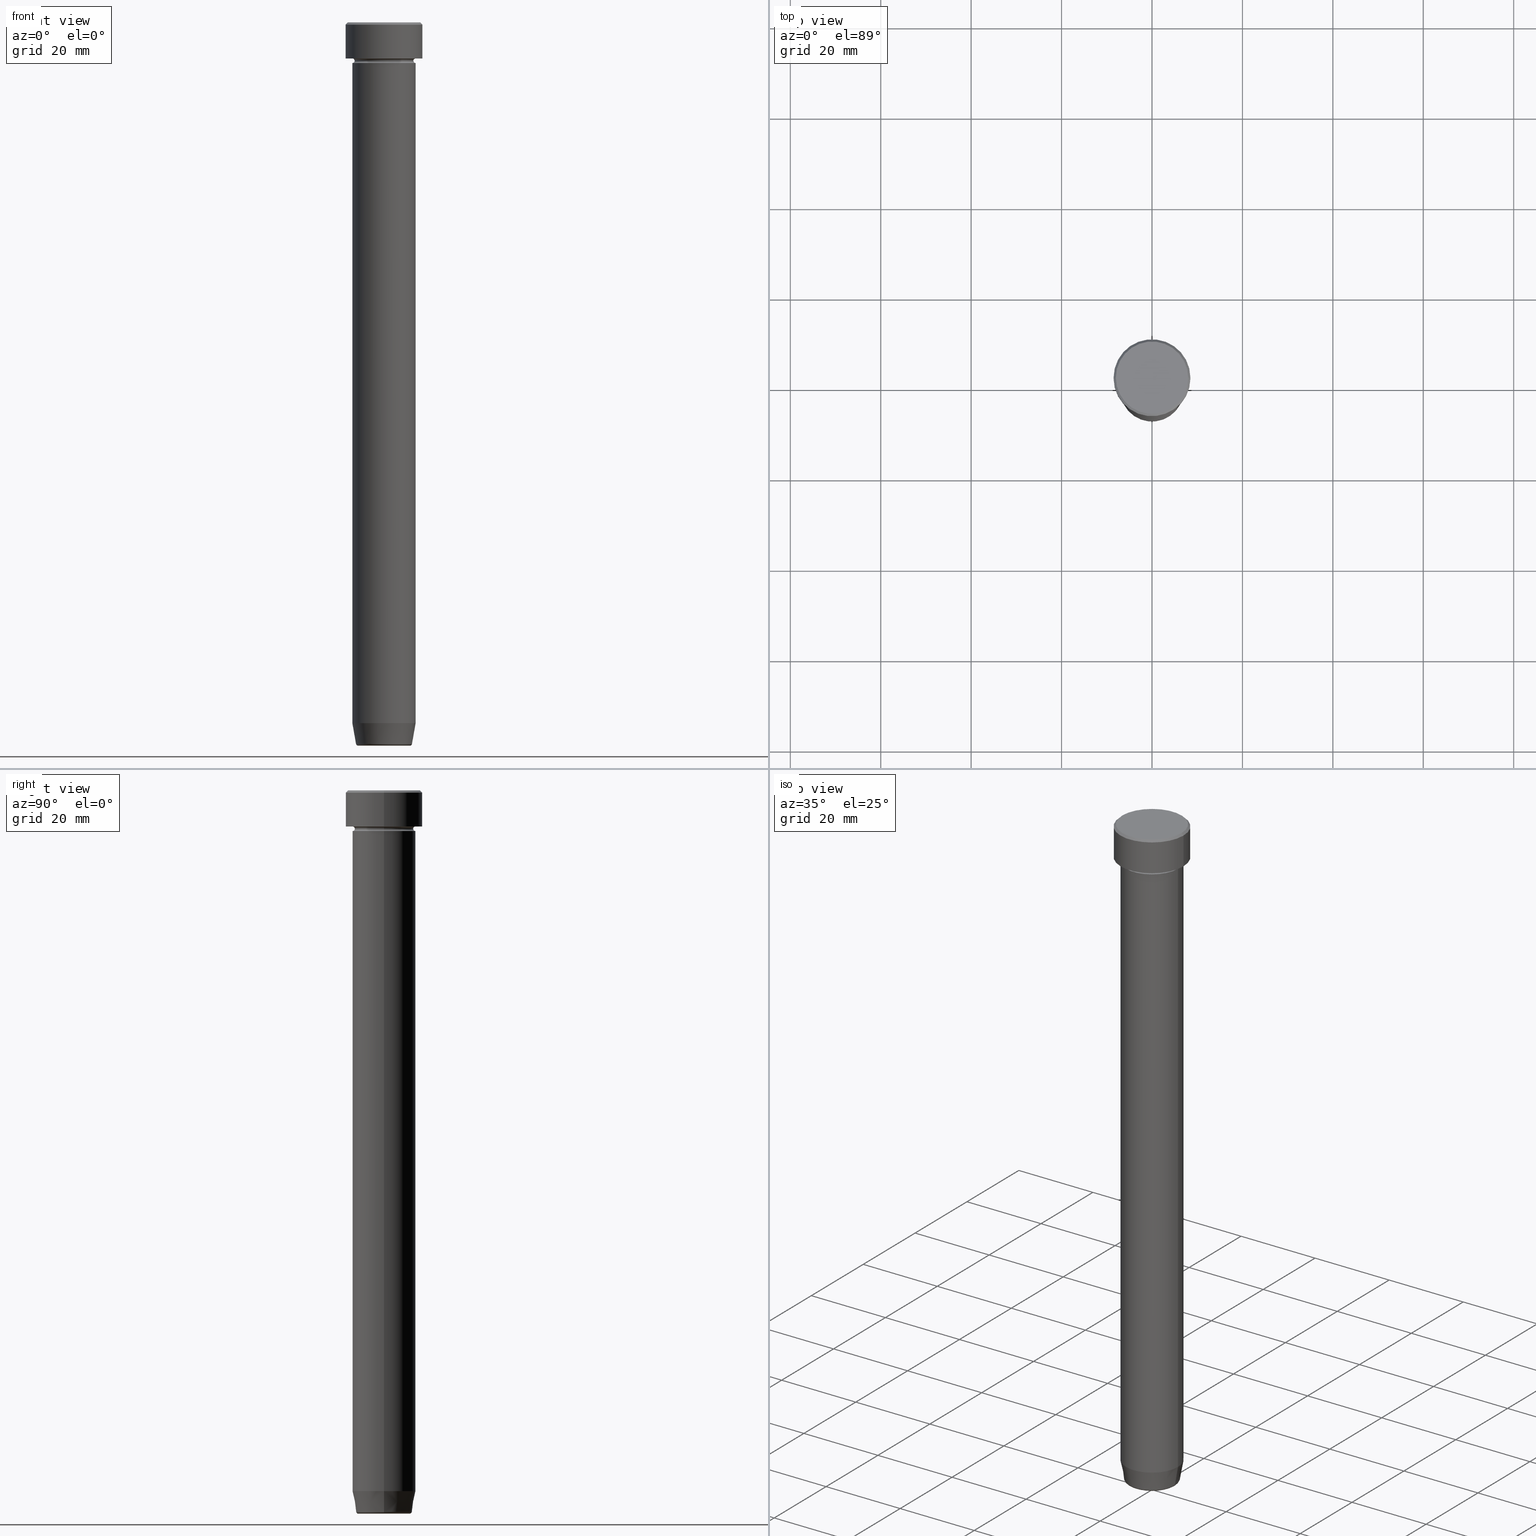
[diagram: canonical four-view strip — front | top / right | iso, engineering-drawing reading convention]
A machine part, canonical four-view strip (front | top / right | iso — engineering-drawing reading convention). The complete STEP part file that produces these views, byte-faithful:
ISO-10303-21;
HEADER;
FILE_DESCRIPTION (( 'STEP AP203' ),
    '1' );
FILE_NAME ('0b89.STEP',
    '2024-01-02T23:19:07',
    ( '' ),
    ( '' ),
    'SwSTEP 2.0',
    'SolidWorks 2019',
    '' );
FILE_SCHEMA (( 'CONFIG_CONTROL_DESIGN' ));
ENDSEC;

DATA;
#1 = EDGE_CURVE ( 'NONE', #176, #409, #276, .T. ) ;
#2 = CARTESIAN_POINT ( 'NONE',  ( 0.000000000000000000, 0.000000000000000000, -8.000000000000000000 ) ) ;
#3 = VECTOR ( 'NONE', #314, 1000.000000000000000 ) ;
#4 = APPROVAL_PERSON_ORGANIZATION ( #391, #126, #346 ) ;
#5 = CARTESIAN_POINT ( 'NONE',  ( -6.999999999999999112, 8.572527594031472204E-16, -22.00000000000000000 ) ) ;
#6 = DIRECTION ( 'NONE',  ( 0.1736481776669292765, 0.000000000000000000, 0.9848077530122082424 ) ) ;
#7 = ORIENTED_EDGE ( 'NONE', *, *, #411, .T. ) ;
#8 = DATE_AND_TIME ( #381, #588 ) ;
#9 = DIRECTION ( 'NONE',  ( -1.000000000000000000, 0.000000000000000000, 0.000000000000000000 ) ) ;
#10 = CARTESIAN_POINT ( 'NONE',  ( 6.118365096457679009, 0.000000000000000000, -160.0000000000000000 ) ) ;
#11 = CALENDAR_DATE ( 2024, 3, 1 ) ;
#12 = DIRECTION ( 'NONE',  ( -0.000000000000000000, -0.000000000000000000, 1.000000000000000000 ) ) ;
#13 = CARTESIAN_POINT ( 'NONE',  ( 0.000000000000000000, 1.347111479062088839E-14, -160.0000000000000000 ) ) ;
#14 = EDGE_CURVE ( 'NONE', #409, #176, #580, .T. ) ;
#15 = ORIENTED_EDGE ( 'NONE', *, *, #403, .F. ) ;
#16 = VECTOR ( 'NONE', #591, 1000.000000000000000 ) ;
#17 = DIRECTION ( 'NONE',  ( 1.000000000000000000, 0.000000000000000000, 0.000000000000000000 ) ) ;
#18 = ORIENTED_EDGE ( 'NONE', *, *, #445, .F. ) ;
#19 = CC_DESIGN_PERSON_AND_ORGANIZATION_ASSIGNMENT ( #579, #331, ( #232 ) ) ;
#20 = DIRECTION ( 'NONE',  ( 1.000000000000000000, 0.000000000000000000, 0.000000000000000000 ) ) ;
#21 = DIRECTION ( 'NONE',  ( 0.000000000000000000, -0.000000000000000000, 1.000000000000000000 ) ) ;
#22 = EDGE_LOOP ( 'NONE', ( #405, #302, #308, #495 ) ) ;
#23 = EDGE_CURVE ( 'NONE', #29, #237, #493, .T. ) ;
#24 = ORIENTED_EDGE ( 'NONE', *, *, #537, .T. ) ;
#25 = AXIS2_PLACEMENT_3D ( 'NONE', #157, #109, #392 ) ;
#26 = CARTESIAN_POINT ( 'NONE',  ( 0.000000000000000000, 0.000000000000000000, 0.000000000000000000 ) ) ;
#27 = AXIS2_PLACEMENT_3D ( 'NONE', #506, #555, #456 ) ;
#28 = DIRECTION ( 'NONE',  ( 1.000000000000000000, 0.000000000000000000, 0.000000000000000000 ) ) ;
#29 = VERTEX_POINT ( 'NONE', #37 ) ;
#30 = VERTEX_POINT ( 'NONE', #418 ) ;
#31 = FACE_OUTER_BOUND ( 'NONE', #435, .T. ) ;
#32 = ORIENTED_EDGE ( 'NONE', *, *, #139, .T. ) ;
#33 = EDGE_CURVE ( 'NONE', #397, #450, #442, .T. ) ;
#34 = TOROIDAL_SURFACE ( 'NONE', #449, 5.698815280869040656, 0.5000000000000000000 ) ;
#35 = LOCAL_TIME ( 0, 19, 7.000000000000000000, #159 ) ;
#36 = EDGE_LOOP ( 'NONE', ( #524, #150, #487, #105 ) ) ;
#37 = CARTESIAN_POINT ( 'NONE',  ( -7.000000000000000888, 0.000000000000000000, -8.000000000000000000 ) ) ;
#38 = EDGE_CURVE ( 'NONE', #538, #385, #267, .T. ) ;
#39 = DIRECTION ( 'NONE',  ( 1.000000000000000000, 0.000000000000000000, 0.000000000000000000 ) ) ;
#40 = CARTESIAN_POINT ( 'NONE',  ( -6.999999999999999112, 8.572527594031472204E-16, 0.000000000000000000 ) ) ;
#41 = CIRCLE ( 'NONE', #433, 6.999999999999999112 ) ;
#42 = DIRECTION ( 'NONE',  ( -0.000000000000000000, -0.000000000000000000, 1.000000000000000000 ) ) ;
#43 = AXIS2_PLACEMENT_3D ( 'NONE', #2, #221, #187 ) ;
#44 = AXIS2_PLACEMENT_3D ( 'NONE', #89, #42, #369 ) ;
#45 = DIRECTION ( 'NONE',  ( 1.000000000000000000, 0.000000000000000000, 0.000000000000000000 ) ) ;
#46 = DIRECTION ( 'NONE',  ( 0.000000000000000000, 0.000000000000000000, -1.000000000000000000 ) ) ;
#47 = EDGE_CURVE ( 'NONE', #116, #402, #597, .T. ) ;
#48 = LINE ( 'NONE', #550, #3 ) ;
#49 = DIRECTION ( 'NONE',  ( 1.000000000000000000, 0.000000000000000000, 0.000000000000000000 ) ) ;
#50 = LINE ( 'NONE', #378, #83 ) ;
#51 = CIRCLE ( 'NONE', #131, 7.000000000000000888 ) ;
#52 = VERTEX_POINT ( 'NONE', #94 ) ;
#53 = SECURITY_CLASSIFICATION ( '', '', #335 ) ;
#54 = APPROVAL_DATE_TIME ( #531, #590 ) ;
#55 = CIRCLE ( 'NONE', #398, 5.698815280869040656 ) ;
#56 = PLANE ( 'NONE',  #170 ) ;
#57 = ORIENTED_EDGE ( 'NONE', *, *, #217, .T. ) ;
#58 = DATE_TIME_ROLE ( 'classification_date' ) ;
#59 = EDGE_CURVE ( 'NONE', #584, #202, #135, .T. ) ;
#60 = CARTESIAN_POINT ( 'NONE',  ( 6.500000000000000888, 0.000000000000000000, -8.500000000000000000 ) ) ;
#61 = EDGE_LOOP ( 'NONE', ( #352, #334 ) ) ;
#62 = DIRECTION ( 'NONE',  ( -0.000000000000000000, -0.000000000000000000, 1.000000000000000000 ) ) ;
#63 = EDGE_LOOP ( 'NONE', ( #173, #339 ) ) ;
#64 = AXIS2_PLACEMENT_3D ( 'NONE', #523, #62, #434 ) ;
#65 = COORDINATED_UNIVERSAL_TIME_OFFSET ( 1, 0, .AHEAD. ) ;
#66 = AXIS2_PLACEMENT_3D ( 'NONE', #255, #439, #585 ) ;
#67 = CARTESIAN_POINT ( 'NONE',  ( 0.000000000000000000, 0.000000000000000000, -8.500000000000000000 ) ) ;
#68 = ORIENTED_EDGE ( 'NONE', *, *, #14, .T. ) ;
#69 = EDGE_CURVE ( 'NONE', #249, #402, #233, .T. ) ;
#70 =( NAMED_UNIT ( * ) SI_UNIT ( $, .STERADIAN. ) SOLID_ANGLE_UNIT ( ) );
#71 = EDGE_LOOP ( 'NONE', ( #18, #119, #155, #543 ) ) ;
#72 = MECHANICAL_CONTEXT ( 'NONE', #75, 'mechanical' ) ;
#73 = DIRECTION ( 'NONE',  ( 1.000000000000000000, 0.000000000000000000, 0.000000000000000000 ) ) ;
#74 = EDGE_LOOP ( 'NONE', ( #475, #446 ) ) ;
#75 = APPLICATION_CONTEXT ( 'configuration controlled 3d designs of mechanical parts and assemblies' ) ;
#76 = AXIS2_PLACEMENT_3D ( 'NONE', #97, #200, #564 ) ;
#77 = CARTESIAN_POINT ( 'NONE',  ( 5.698815280869040656, 0.000000000000000000, -159.5000000000000000 ) ) ;
#78 = ORIENTED_EDGE ( 'NONE', *, *, #139, .F. ) ;
#79 = DIRECTION ( 'NONE',  ( 1.000000000000000000, 0.000000000000000000, 0.000000000000000000 ) ) ;
#80 = ADVANCED_FACE ( 'NONE', ( #273 ), #319, .T. ) ;
#81 = ORIENTED_EDGE ( 'NONE', *, *, #1, .T. ) ;
#82 = EDGE_LOOP ( 'NONE', ( #536, #81, #530, #360 ) ) ;
#83 = VECTOR ( 'NONE', #191, 1000.000000000000000 ) ;
#84 = DIRECTION ( 'NONE',  ( -1.000000000000000000, 0.000000000000000000, 0.000000000000000000 ) ) ;
#85 = CIRCLE ( 'NONE', #25, 0.5000000000000004441 ) ;
#86 = ADVANCED_FACE ( 'NONE', ( #180 ), #223, .F. ) ;
#87 = DIRECTION ( 'NONE',  ( -0.000000000000000000, -0.000000000000000000, 1.000000000000000000 ) ) ;
#88 = CARTESIAN_POINT ( 'NONE',  ( 0.000000000000000000, 0.000000000000000000, -8.000000000000000000 ) ) ;
#89 = CARTESIAN_POINT ( 'NONE',  ( 0.000000000000000000, 0.000000000000000000, -8.000000000000000000 ) ) ;
#90 = DIRECTION ( 'NONE',  ( -0.000000000000000000, -0.000000000000000000, 1.000000000000000000 ) ) ;
#91 = FACE_OUTER_BOUND ( 'NONE', #482, .T. ) ;
#92 = CONICAL_SURFACE ( 'NONE', #27, 8.000000000000000000, 0.7853981633974500554 ) ;
#93 = CARTESIAN_POINT ( 'NONE',  ( -8.500000000000000000, 1.040949779275250140E-15, -8.000000000000000000 ) ) ;
#94 = CARTESIAN_POINT ( 'NONE',  ( 8.000000000000000000, 1.010333609296566550E-15, 0.000000000000000000 ) ) ;
#95 = CYLINDRICAL_SURFACE ( 'NONE', #395, 8.500000000000000000 ) ;
#96 = FACE_OUTER_BOUND ( 'NONE', #22, .T. ) ;
#97 = CARTESIAN_POINT ( 'NONE',  ( 7.000000000000000888, 8.572527594031474176E-16, -8.500000000000000000 ) ) ;
#98 = CARTESIAN_POINT ( 'NONE',  ( -8.500000000000000000, 1.040949779275250140E-15, -0.4999999999999987232 ) ) ;
#99 = CIRCLE ( 'NONE', #112, 0.5000000000000004441 ) ;
#100 = ORIENTED_EDGE ( 'NONE', *, *, #461, .T. ) ;
#101 = CC_DESIGN_SECURITY_CLASSIFICATION ( #53, ( #415 ) ) ;
#102 = PERSON_AND_ORGANIZATION ( #269, #163 ) ;
#103 = EDGE_CURVE ( 'NONE', #393, #496, #55, .T. ) ;
#104 = DIRECTION ( 'NONE',  ( 1.000000000000000000, 0.000000000000000000, 0.000000000000000000 ) ) ;
#105 = ORIENTED_EDGE ( 'NONE', *, *, #363, .F. ) ;
#106 = CYLINDRICAL_SURFACE ( 'NONE', #64, 6.999999999999999112 ) ;
#107 = COORDINATED_UNIVERSAL_TIME_OFFSET ( 1, 0, .AHEAD. ) ;
#108 = DIRECTION ( 'NONE',  ( -1.000000000000000000, 1.224646799147351482E-16, 0.000000000000000000 ) ) ;
#109 = DIRECTION ( 'NONE',  ( 0.000000000000000000, -1.000000000000000000, 0.000000000000000000 ) ) ;
#110 = ADVANCED_FACE ( 'NONE', ( #138 ), #92, .T. ) ;
#111 = ORIENTED_EDGE ( 'NONE', *, *, #340, .F. ) ;
#112 = AXIS2_PLACEMENT_3D ( 'NONE', #77, #578, #353 ) ;
#113 = PERSON_AND_ORGANIZATION ( #269, #163 ) ;
#114 = LOCAL_TIME ( 0, 19, 7.000000000000000000, #107 ) ;
#115 = APPROVAL_STATUS ( 'not_yet_approved' ) ;
#116 = VERTEX_POINT ( 'NONE', #325 ) ;
#117 =( LENGTH_UNIT ( ) NAMED_UNIT ( * ) SI_UNIT ( .MILLI., .METRE. ) );
#118 = ORIENTED_EDGE ( 'NONE', *, *, #542, .T. ) ;
#119 = ORIENTED_EDGE ( 'NONE', *, *, #146, .F. ) ;
#120 = AXIS2_PLACEMENT_3D ( 'NONE', #239, #144, #108 ) ;
#121 = CC_DESIGN_APPROVAL ( #407, ( #415 ) ) ;
#122 = ADVANCED_FACE ( 'NONE', ( #599 ), #559, .T. ) ;
#123 = TOROIDAL_SURFACE ( 'NONE', #458, 7.000000000000000888, 0.5000000000000000000 ) ;
#124 = DIRECTION ( 'NONE',  ( -0.000000000000000000, -0.000000000000000000, 1.000000000000000000 ) ) ;
#125 = EDGE_LOOP ( 'NONE', ( #78, #380, #118, #15 ) ) ;
#126 = APPROVAL ( #115, 'NEUR�EN�' ) ;
#127 = ORIENTED_EDGE ( 'NONE', *, *, #14, .F. ) ;
#128 = CARTESIAN_POINT ( 'NONE',  ( 0.000000000000000000, 0.000000000000000000, -22.00000000000000000 ) ) ;
#129 = ORIENTED_EDGE ( 'NONE', *, *, #552, .F. ) ;
#130 = ADVANCED_FACE ( 'NONE', ( #91 ), #208, .T. ) ;
#131 = AXIS2_PLACEMENT_3D ( 'NONE', #561, #195, #9 ) ;
#132 = CARTESIAN_POINT ( 'NONE',  ( 5.698815280869040656, 0.000000000000000000, -160.0000000000000000 ) ) ;
#133 =( GEOMETRIC_REPRESENTATION_CONTEXT ( 3 ) GLOBAL_UNCERTAINTY_ASSIGNED_CONTEXT ( ( #185 ) ) GLOBAL_UNIT_ASSIGNED_CONTEXT ( ( #117, #583, #70 ) ) REPRESENTATION_CONTEXT ( 'NONE', 'WORKASPACE' ) );
#134 = AXIS2_PLACEMENT_3D ( 'NONE', #137, #279, #49 ) ;
#135 = LINE ( 'NONE', #329, #164 ) ;
#136 = DIRECTION ( 'NONE',  ( 1.000000000000000000, 0.000000000000000000, 0.000000000000000000 ) ) ;
#137 = CARTESIAN_POINT ( 'NONE',  ( 0.000000000000000000, 0.000000000000000000, 0.000000000000000000 ) ) ;
#138 = FACE_OUTER_BOUND ( 'NONE', #71, .T. ) ;
#139 = EDGE_CURVE ( 'NONE', #402, #264, #231, .T. ) ;
#140 = CARTESIAN_POINT ( 'NONE',  ( 0.000000000000000000, 0.000000000000000000, -160.0000000000000000 ) ) ;
#141 = CIRCLE ( 'NONE', #520, 6.999999999999999112 ) ;
#142 = DIRECTION ( 'NONE',  ( -0.000000000000000000, -0.000000000000000000, 1.000000000000000000 ) ) ;
#143 = AXIS2_PLACEMENT_3D ( 'NONE', #270, #460, #454 ) ;
#144 = DIRECTION ( 'NONE',  ( 1.224646799147353207E-16, 1.000000000000000000, 0.000000000000000000 ) ) ;
#145 = PERSON_AND_ORGANIZATION_ROLE ( 'design_supplier' ) ;
#146 = EDGE_CURVE ( 'NONE', #423, #52, #406, .T. ) ;
#147 = EDGE_LOOP ( 'NONE', ( #165, #262, #377, #527 ) ) ;
#148 = DATE_AND_TIME ( #283, #114 ) ;
#149 = FACE_OUTER_BOUND ( 'NONE', #212, .T. ) ;
#150 = ORIENTED_EDGE ( 'NONE', *, *, #320, .T. ) ;
#151 = PERSON_AND_ORGANIZATION ( #269, #163 ) ;
#152 = CLOSED_SHELL ( 'NONE', ( #528, #190, #183, #86, #586, #256, #280, #488 ) ) ;
#153 = FACE_OUTER_BOUND ( 'NONE', #125, .T. ) ;
#154 = FACE_OUTER_BOUND ( 'NONE', #592, .T. ) ;
#155 = ORIENTED_EDGE ( 'NONE', *, *, #303, .T. ) ;
#156 = EDGE_CURVE ( 'NONE', #450, #397, #287, .T. ) ;
#157 = CARTESIAN_POINT ( 'NONE',  ( 7.000000000000000888, 0.000000000000000000, -8.500000000000000000 ) ) ;
#158 = ORIENTED_EDGE ( 'NONE', *, *, #558, .T. ) ;
#159 = COORDINATED_UNIVERSAL_TIME_OFFSET ( 1, 0, .AHEAD. ) ;
#160 = DIRECTION ( 'NONE',  ( -0.000000000000000000, -0.000000000000000000, 1.000000000000000000 ) ) ;
#161 = EDGE_LOOP ( 'NONE', ( #589, #158, #252, #111 ) ) ;
#162 = AXIS2_PLACEMENT_3D ( 'NONE', #459, #90, #136 ) ;
#163 = ORGANIZATION ( 'NEUR�EN�', 'NEUR�EN�', '' ) ;
#164 = VECTOR ( 'NONE', #228, 1000.000000000000000 ) ;
#165 = ORIENTED_EDGE ( 'NONE', *, *, #33, .T. ) ;
#166 = CARTESIAN_POINT ( 'NONE',  ( 0.000000000000000000, 0.000000000000000000, -9.000000000000001776 ) ) ;
#167 = ORIENTED_EDGE ( 'NONE', *, *, #507, .F. ) ;
#168 = ADVANCED_FACE ( 'NONE', ( #374 ), #123, .F. ) ;
#169 = CARTESIAN_POINT ( 'NONE',  ( 0.000000000000000000, 0.000000000000000000, -8.500000000000000000 ) ) ;
#170 = AXIS2_PLACEMENT_3D ( 'NONE', #193, #290, #465 ) ;
#171 = LOCAL_TIME ( 0, 19, 7.000000000000000000, #65 ) ;
#172 = DIRECTION ( 'NONE',  ( 1.000000000000000000, 0.000000000000000000, 0.000000000000000000 ) ) ;
#173 = ORIENTED_EDGE ( 'NONE', *, *, #370, .T. ) ;
#174 = EDGE_CURVE ( 'NONE', #30, #116, #413, .T. ) ;
#175 = DIRECTION ( 'NONE',  ( 1.224646799147353207E-16, 1.000000000000000000, 0.000000000000000000 ) ) ;
#176 = VERTEX_POINT ( 'NONE', #60 ) ;
#177 = DIRECTION ( 'NONE',  ( 0.000000000000000000, 0.000000000000000000, -1.000000000000000000 ) ) ;
#178 = AXIS2_PLACEMENT_3D ( 'NONE', #26, #350, #443 ) ;
#179 = DIRECTION ( 'NONE',  ( -0.000000000000000000, -0.000000000000000000, 1.000000000000000000 ) ) ;
#180 = FACE_OUTER_BOUND ( 'NONE', #63, .T. ) ;
#181 = CARTESIAN_POINT ( 'NONE',  ( 0.000000000000000000, 0.000000000000000000, -22.00000000000000000 ) ) ;
#182 = DIRECTION ( 'NONE',  ( -0.1736481776669292765, 2.126576849575758356E-17, 0.9848077530122082424 ) ) ;
#183 = ADVANCED_FACE ( 'NONE', ( #154 ), #529, .T. ) ;
#184 = DIRECTION ( 'NONE',  ( -1.000000000000000000, 0.000000000000000000, 0.000000000000000000 ) ) ;
#185 = UNCERTAINTY_MEASURE_WITH_UNIT (LENGTH_MEASURE( 1.000000000000000082E-05 ), #117, 'distance_accuracy_value', 'NONE');
#186 = AXIS2_PLACEMENT_3D ( 'NONE', #67, #436, #104 ) ;
#187 = DIRECTION ( 'NONE',  ( 1.000000000000000000, 0.000000000000000000, 0.000000000000000000 ) ) ;
#188 = VECTOR ( 'NONE', #323, 1000.000000000000000 ) ;
#189 = CARTESIAN_POINT ( 'NONE',  ( 0.000000000000000000, 0.000000000000000000, -0.4999999999999987232 ) ) ;
#190 = ADVANCED_FACE ( 'NONE', ( #96 ), #210, .T. ) ;
#191 = DIRECTION ( 'NONE',  ( -0.7071067811865487940, 0.000000000000000000, -0.7071067811865463515 ) ) ;
#192 = ORIENTED_EDGE ( 'NONE', *, *, #340, .T. ) ;
#193 = CARTESIAN_POINT ( 'NONE',  ( 0.000000000000000000, 0.000000000000000000, 0.000000000000000000 ) ) ;
#194 = ORIENTED_EDGE ( 'NONE', *, *, #542, .F. ) ;
#195 = DIRECTION ( 'NONE',  ( -0.000000000000000000, -0.000000000000000000, 1.000000000000000000 ) ) ;
#196 = FACE_OUTER_BOUND ( 'NONE', #541, .T. ) ;
#197 = AXIS2_PLACEMENT_3D ( 'NONE', #324, #175, #359 ) ;
#198 = EDGE_LOOP ( 'NONE', ( #257, #563, #192, #518 ) ) ;
#199 = PERSON_AND_ORGANIZATION ( #269, #163 ) ;
#200 = DIRECTION ( 'NONE',  ( -1.224646799147353207E-16, 1.000000000000000000, 0.000000000000000000 ) ) ;
#201 = DIRECTION ( 'NONE',  ( -0.000000000000000000, -1.000000000000000000, -0.000000000000000000 ) ) ;
#202 = VERTEX_POINT ( 'NONE', #203 ) ;
#203 = CARTESIAN_POINT ( 'NONE',  ( 7.000000000000000000, 0.000000000000000000, -9.000000000000001776 ) ) ;
#204 = EDGE_LOOP ( 'NONE', ( #401, #484, #477, #294 ) ) ;
#205 = APPROVAL_DATE_TIME ( #483, #126 ) ;
#206 = DIRECTION ( 'NONE',  ( -0.000000000000000000, -0.000000000000000000, 1.000000000000000000 ) ) ;
#207 = AXIS2_PLACEMENT_3D ( 'NONE', #220, #179, #39 ) ;
#208 = CONICAL_SURFACE ( 'NONE', #549, 8.000000000000000000, 0.7853981633974500554 ) ;
#209 = CARTESIAN_POINT ( 'NONE',  ( 0.000000000000000000, 0.000000000000000000, 0.000000000000000000 ) ) ;
#210 = CONICAL_SURFACE ( 'NONE', #481, 6.118365096457679009, 0.1745329251994318653 ) ;
#211 = EDGE_CURVE ( 'NONE', #402, #116, #502, .T. ) ;
#212 = EDGE_LOOP ( 'NONE', ( #566, #261, #311, #576 ) ) ;
#213 = PRODUCT ( '0b89', '0b89', '', ( #72 ) ) ;
#214 = ORIENTED_EDGE ( 'NONE', *, *, #156, .F. ) ;
#215 = VERTEX_POINT ( 'NONE', #246 ) ;
#216 = TOROIDAL_SURFACE ( 'NONE', #162, 5.698815280869040656, 0.5000000000000000000 ) ;
#217 = EDGE_CURVE ( 'NONE', #52, #423, #494, .T. ) ;
#218 = CLOSED_SHELL ( 'NONE', ( #130, #357, #390, #328, #573, #122, #292, #80, #425, #229, #271, #168, #110 ) ) ;
#219 = VERTEX_POINT ( 'NONE', #98 ) ;
#220 = CARTESIAN_POINT ( 'NONE',  ( 0.000000000000000000, 0.000000000000000000, -8.500000000000000000 ) ) ;
#221 = DIRECTION ( 'NONE',  ( -0.000000000000000000, -0.000000000000000000, 1.000000000000000000 ) ) ;
#222 = DIRECTION ( 'NONE',  ( 1.000000000000000000, 0.000000000000000000, 0.000000000000000000 ) ) ;
#223 = PLANE ( 'NONE',  #143 ) ;
#224 = CIRCLE ( 'NONE', #120, 0.5000000000000004441 ) ;
#225 = CIRCLE ( 'NONE', #307, 8.500000000000000000 ) ;
#226 = CARTESIAN_POINT ( 'NONE',  ( -6.999999999999999112, 8.572527594031472204E-16, -155.0000000000000000 ) ) ;
#227 = VECTOR ( 'NONE', #182, 1000.000000000000000 ) ;
#228 = DIRECTION ( 'NONE',  ( -0.000000000000000000, -0.000000000000000000, 1.000000000000000000 ) ) ;
#229 = ADVANCED_FACE ( 'NONE', ( #526 ), #106, .T. ) ;
#230 = FACE_OUTER_BOUND ( 'NONE', #161, .T. ) ;
#231 = LINE ( 'NONE', #371, #570 ) ;
#232 = PRODUCT_DEFINITION ( 'NEZN�M�', '', #415, #365 ) ;
#233 = LINE ( 'NONE', #595, #227 ) ;
#234 = EDGE_CURVE ( 'NONE', #176, #202, #85, .T. ) ;
#235 = VECTOR ( 'NONE', #557, 1000.000000000000000 ) ;
#236 = CARTESIAN_POINT ( 'NONE',  ( 0.000000000000000000, 0.000000000000000000, -159.5868240888334526 ) ) ;
#237 = VERTEX_POINT ( 'NONE', #243 ) ;
#238 = DATE_TIME_ROLE ( 'creation_date' ) ;
#239 = CARTESIAN_POINT ( 'NONE',  ( -5.698815280869040656, 6.979035892648295646E-16, -159.5000000000000000 ) ) ;
#240 = DIRECTION ( 'NONE',  ( 1.000000000000000000, 0.000000000000000000, 0.000000000000000000 ) ) ;
#241 = ORIENTED_EDGE ( 'NONE', *, *, #248, .F. ) ;
#242 = APPROVAL_DATE_TIME ( #8, #407 ) ;
#243 = CARTESIAN_POINT ( 'NONE',  ( 7.000000000000000888, 8.572527594031474176E-16, -8.000000000000000000 ) ) ;
#244 = ORIENTED_EDGE ( 'NONE', *, *, #23, .F. ) ;
#245 = CALENDAR_DATE ( 2024, 3, 1 ) ;
#246 = CARTESIAN_POINT ( 'NONE',  ( 8.500000000000000000, 0.000000000000000000, -0.4999999999999987232 ) ) ;
#247 = TOROIDAL_SURFACE ( 'NONE', #587, 7.000000000000000888, 0.5000000000000000000 ) ;
#248 = EDGE_CURVE ( 'NONE', #409, #29, #348, .T. ) ;
#249 = VERTEX_POINT ( 'NONE', #388 ) ;
#250 = PERSON_AND_ORGANIZATION_ROLE ( 'design_owner' ) ;
#251 = DIRECTION ( 'NONE',  ( -0.000000000000000000, -0.000000000000000000, 1.000000000000000000 ) ) ;
#252 = ORIENTED_EDGE ( 'NONE', *, *, #596, .F. ) ;
#253 = CC_DESIGN_DATE_AND_TIME_ASSIGNMENT ( #466, #58, ( #53 ) ) ;
#254 = APPLICATION_PROTOCOL_DEFINITION ( 'international standard', 'config_control_design', 1994, #75 ) ;
#255 = CARTESIAN_POINT ( 'NONE',  ( 0.000000000000000000, 0.000000000000000000, -8.500000000000000000 ) ) ;
#256 = ADVANCED_FACE ( 'NONE', ( #295 ), #404, .T. ) ;
#257 = ORIENTED_EDGE ( 'NONE', *, *, #558, .F. ) ;
#258 = CIRCLE ( 'NONE', #547, 6.191219157375146054 ) ;
#259 = DIRECTION ( 'NONE',  ( 0.000000000000000000, 0.000000000000000000, 1.000000000000000000 ) ) ;
#260 = CARTESIAN_POINT ( 'NONE',  ( 0.000000000000000000, 0.000000000000000000, -8.500000000000000000 ) ) ;
#261 = ORIENTED_EDGE ( 'NONE', *, *, #1, .F. ) ;
#262 = ORIENTED_EDGE ( 'NONE', *, *, #507, .T. ) ;
#263 = EDGE_CURVE ( 'NONE', #249, #30, #258, .T. ) ;
#264 = VERTEX_POINT ( 'NONE', #430 ) ;
#265 = AXIS2_PLACEMENT_3D ( 'NONE', #508, #512, #544 ) ;
#266 = CARTESIAN_POINT ( 'NONE',  ( -6.500000000000000888, 8.266365894244635319E-16, -8.500000000000000000 ) ) ;
#267 = LINE ( 'NONE', #40, #188 ) ;
#268 = FACE_OUTER_BOUND ( 'NONE', #492, .T. ) ;
#269 = PERSON ( 'NEUR�EN�', 'NEUR�EN�', 'NEUR�EN�', ('NEUR�EN�'), ('NEUR�EN�'), ('NEUR�EN�') ) ;
#270 = CARTESIAN_POINT ( 'NONE',  ( 0.000000000000000000, 0.000000000000000000, -22.00000000000000000 ) ) ;
#271 = ADVANCED_FACE ( 'NONE', ( #149 ), #510, .F. ) ;
#272 = DIRECTION ( 'NONE',  ( -0.000000000000000000, -0.000000000000000000, 1.000000000000000000 ) ) ;
#273 = FACE_OUTER_BOUND ( 'NONE', #437, .T. ) ;
#274 = AXIS2_PLACEMENT_3D ( 'NONE', #181, #272, #45 ) ;
#275 = CARTESIAN_POINT ( 'NONE',  ( -8.500000000000000000, 1.040949779275250140E-15, 0.000000000000000000 ) ) ;
#276 = CIRCLE ( 'NONE', #66, 6.500000000000000888 ) ;
#277 = CARTESIAN_POINT ( 'NONE',  ( 0.000000000000000000, 0.000000000000000000, 0.000000000000000000 ) ) ;
#278 = LINE ( 'NONE', #366, #16 ) ;
#279 = DIRECTION ( 'NONE',  ( -0.000000000000000000, -0.000000000000000000, 1.000000000000000000 ) ) ;
#280 = ADVANCED_FACE ( 'NONE', ( #562 ), #426, .F. ) ;
#281 = CARTESIAN_POINT ( 'NONE',  ( 6.999999999999999112, 0.000000000000000000, -22.00000000000000000 ) ) ;
#282 = DIRECTION ( 'NONE',  ( 1.000000000000000000, 0.000000000000000000, 0.000000000000000000 ) ) ;
#283 = CALENDAR_DATE ( 2024, 3, 1 ) ;
#284 = AXIS2_PLACEMENT_3D ( 'NONE', #344, #201, #422 ) ;
#285 = APPROVAL_PERSON_ORGANIZATION ( #102, #407, #476 ) ;
#286 = DIRECTION ( 'NONE',  ( -1.000000000000000000, 0.000000000000000000, 0.000000000000000000 ) ) ;
#287 = CIRCLE ( 'NONE', #43, 8.500000000000000000 ) ;
#288 = ORIENTED_EDGE ( 'NONE', *, *, #33, .F. ) ;
#289 = APPROVAL_ROLE ( '' ) ;
#290 = DIRECTION ( 'NONE',  ( 0.000000000000000000, -0.000000000000000000, 1.000000000000000000 ) ) ;
#291 = ORIENTED_EDGE ( 'NONE', *, *, #363, .T. ) ;
#292 = ADVANCED_FACE ( 'NONE', ( #196 ), #56, .T. ) ;
#293 = CARTESIAN_POINT ( 'NONE',  ( 0.000000000000000000, 0.000000000000000000, -155.0000000000000000 ) ) ;
#294 = ORIENTED_EDGE ( 'NONE', *, *, #211, .F. ) ;
#295 = FACE_OUTER_BOUND ( 'NONE', #204, .T. ) ;
#296 = CC_DESIGN_PERSON_AND_ORGANIZATION_ASSIGNMENT ( #199, #386, ( #415 ) ) ;
#297 = AXIS2_PLACEMENT_3D ( 'NONE', #318, #417, #554 ) ;
#298 = ORIENTED_EDGE ( 'NONE', *, *, #303, .F. ) ;
#299 = AXIS2_PLACEMENT_3D ( 'NONE', #293, #515, #17 ) ;
#300 = CALENDAR_DATE ( 2024, 3, 1 ) ;
#301 = PRODUCT_DEFINITION_SHAPE ( 'NONE', 'NONE',  #232 ) ;
#302 = ORIENTED_EDGE ( 'NONE', *, *, #69, .T. ) ;
#303 = EDGE_CURVE ( 'NONE', #423, #219, #50, .T. ) ;
#304 = DIRECTION ( 'NONE',  ( -0.000000000000000000, -0.000000000000000000, 1.000000000000000000 ) ) ;
#305 = ORIENTED_EDGE ( 'NONE', *, *, #419, .T. ) ;
#306 = PERSON_AND_ORGANIZATION ( #269, #163 ) ;
#307 = AXIS2_PLACEMENT_3D ( 'NONE', #189, #375, #343 ) ;
#308 = ORIENTED_EDGE ( 'NONE', *, *, #47, .F. ) ;
#309 = AXIS2_PLACEMENT_3D ( 'NONE', #341, #575, #517 ) ;
#310 = CARTESIAN_POINT ( 'NONE',  ( 0.000000000000000000, 0.000000000000000000, -22.00000000000000000 ) ) ;
#311 = ORIENTED_EDGE ( 'NONE', *, *, #234, .T. ) ;
#312 = CARTESIAN_POINT ( 'NONE',  ( 0.000000000000000000, 0.000000000000000000, 0.000000000000000000 ) ) ;
#313 = ORIENTED_EDGE ( 'NONE', *, *, #156, .T. ) ;
#314 = DIRECTION ( 'NONE',  ( -0.000000000000000000, -0.000000000000000000, 1.000000000000000000 ) ) ;
#315 = DIRECTION ( 'NONE',  ( 1.000000000000000000, 0.000000000000000000, 0.000000000000000000 ) ) ;
#316 = CIRCLE ( 'NONE', #478, 5.698815280869040656 ) ;
#317 = AXIS2_PLACEMENT_3D ( 'NONE', #504, #362, #416 ) ;
#318 = CARTESIAN_POINT ( 'NONE',  ( 0.000000000000000000, 8.500000000000000000, -8.000000000000000000 ) ) ;
#319 = CYLINDRICAL_SURFACE ( 'NONE', #134, 8.500000000000000000 ) ;
#320 = EDGE_CURVE ( 'NONE', #538, #584, #41, .T. ) ;
#321 = MANIFOLD_SOLID_BREP ( 'Zaoblit4', #152 ) ;
#322 = CARTESIAN_POINT ( 'NONE',  ( 8.500000000000000000, 0.000000000000000000, -8.000000000000000000 ) ) ;
#323 = DIRECTION ( 'NONE',  ( -0.000000000000000000, -0.000000000000000000, 1.000000000000000000 ) ) ;
#324 = CARTESIAN_POINT ( 'NONE',  ( -7.000000000000000888, 8.572527594031474176E-16, -8.500000000000000000 ) ) ;
#325 = CARTESIAN_POINT ( 'NONE',  ( 6.999999999999999112, 0.000000000000000000, -155.0000000000000000 ) ) ;
#326 = CIRCLE ( 'NONE', #265, 8.500000000000000000 ) ;
#327 = CC_DESIGN_APPROVAL ( #126, ( #232 ) ) ;
#328 = ADVANCED_FACE ( 'NONE', ( #400 ), #486, .T. ) ;
#329 = CARTESIAN_POINT ( 'NONE',  ( 6.999999999999999112, 0.000000000000000000, 0.000000000000000000 ) ) ;
#330 = DIRECTION ( 'NONE',  ( 1.000000000000000000, 0.000000000000000000, 0.000000000000000000 ) ) ;
#331 = PERSON_AND_ORGANIZATION_ROLE ( 'creator' ) ;
#332 = DIRECTION ( 'NONE',  ( -0.000000000000000000, -0.000000000000000000, 1.000000000000000000 ) ) ;
#333 = DIRECTION ( 'NONE',  ( -0.000000000000000000, -0.000000000000000000, 1.000000000000000000 ) ) ;
#334 = ORIENTED_EDGE ( 'NONE', *, *, #320, .F. ) ;
#335 = SECURITY_CLASSIFICATION_LEVEL ( 'unclassified' ) ;
#336 = CARTESIAN_POINT ( 'NONE',  ( 0.000000000000000000, 0.000000000000000000, -159.5000000000000000 ) ) ;
#337 = CIRCLE ( 'NONE', #274, 6.999999999999999112 ) ;
#338 = CARTESIAN_POINT ( 'NONE',  ( 0.000000000000000000, 0.000000000000000000, -22.00000000000000000 ) ) ;
#339 = ORIENTED_EDGE ( 'NONE', *, *, #403, .T. ) ;
#340 = EDGE_CURVE ( 'NONE', #393, #30, #99, .T. ) ;
#341 = CARTESIAN_POINT ( 'NONE',  ( 0.000000000000000000, 0.000000000000000000, 0.000000000000000000 ) ) ;
#342 = ORIENTED_EDGE ( 'NONE', *, *, #217, .F. ) ;
#343 = DIRECTION ( 'NONE',  ( 1.000000000000000000, 0.000000000000000000, 0.000000000000000000 ) ) ;
#344 = CARTESIAN_POINT ( 'NONE',  ( -7.000000000000000888, 0.000000000000000000, -8.500000000000000000 ) ) ;
#345 = ORIENTED_EDGE ( 'NONE', *, *, #59, .F. ) ;
#346 = APPROVAL_ROLE ( '' ) ;
#347 = CARTESIAN_POINT ( 'NONE',  ( 0.000000000000000000, 0.000000000000000000, -9.000000000000001776 ) ) ;
#348 = CIRCLE ( 'NONE', #284, 0.5000000000000004441 ) ;
#349 = ORIENTED_EDGE ( 'NONE', *, *, #47, .T. ) ;
#350 = DIRECTION ( 'NONE',  ( -0.000000000000000000, -0.000000000000000000, 1.000000000000000000 ) ) ;
#351 = ORIENTED_EDGE ( 'NONE', *, *, #370, .F. ) ;
#352 = ORIENTED_EDGE ( 'NONE', *, *, #419, .F. ) ;
#353 = DIRECTION ( 'NONE',  ( 0.000000000000000000, 0.000000000000000000, -1.000000000000000000 ) ) ;
#354 = AXIS2_PLACEMENT_3D ( 'NONE', #438, #485, #399 ) ;
#355 = ORIENTED_EDGE ( 'NONE', *, *, #234, .F. ) ;
#356 = VECTOR ( 'NONE', #6, 1000.000000000000000 ) ;
#357 = ADVANCED_FACE ( 'NONE', ( #31 ), #247, .F. ) ;
#358 = EDGE_LOOP ( 'NONE', ( #305, #441, #389, #345 ) ) ;
#359 = DIRECTION ( 'NONE',  ( -1.000000000000000000, 1.224646799147351482E-16, 0.000000000000000000 ) ) ;
#360 = ORIENTED_EDGE ( 'NONE', *, *, #581, .F. ) ;
#361 = PLANE ( 'NONE',  #297 ) ;
#362 = DIRECTION ( 'NONE',  ( -0.000000000000000000, -0.000000000000000000, 1.000000000000000000 ) ) ;
#363 = EDGE_CURVE ( 'NONE', #385, #202, #364, .T. ) ;
#364 = CIRCLE ( 'NONE', #594, 7.000000000000000000 ) ;
#365 = DESIGN_CONTEXT ( 'detailed design', #410, 'design' ) ;
#366 = CARTESIAN_POINT ( 'NONE',  ( 8.000000000000000000, 9.797174393178825657E-16, 0.000000000000000000 ) ) ;
#367 = CARTESIAN_POINT ( 'NONE',  ( 0.000000000000000000, 0.000000000000000000, -160.0000000000000000 ) ) ;
#368 = DIRECTION ( 'NONE',  ( 1.000000000000000000, 0.000000000000000000, 0.000000000000000000 ) ) ;
#369 = DIRECTION ( 'NONE',  ( -1.000000000000000000, 0.000000000000000000, 0.000000000000000000 ) ) ;
#370 = EDGE_CURVE ( 'NONE', #535, #264, #532, .T. ) ;
#371 = CARTESIAN_POINT ( 'NONE',  ( -6.999999999999999112, 8.572527594031472204E-16, 0.000000000000000000 ) ) ;
#372 = AXIS2_PLACEMENT_3D ( 'NONE', #347, #533, #447 ) ;
#373 = LOCAL_TIME ( 0, 19, 7.000000000000000000, #428 ) ;
#374 = FACE_OUTER_BOUND ( 'NONE', #82, .T. ) ;
#375 = DIRECTION ( 'NONE',  ( 0.000000000000000000, 0.000000000000000000, -1.000000000000000000 ) ) ;
#376 = DIRECTION ( 'NONE',  ( -0.000000000000000000, -0.000000000000000000, 1.000000000000000000 ) ) ;
#377 = ORIENTED_EDGE ( 'NONE', *, *, #552, .T. ) ;
#378 = CARTESIAN_POINT ( 'NONE',  ( -8.000000000000000000, 0.000000000000000000, 0.000000000000000000 ) ) ;
#379 = EDGE_CURVE ( 'NONE', #202, #385, #491, .T. ) ;
#380 = ORIENTED_EDGE ( 'NONE', *, *, #211, .T. ) ;
#381 = CALENDAR_DATE ( 2024, 3, 1 ) ;
#382 = AXIS2_PLACEMENT_3D ( 'NONE', #13, #21, #330 ) ;
#383 = DIRECTION ( 'NONE',  ( 1.000000000000000000, 0.000000000000000000, 0.000000000000000000 ) ) ;
#384 = AXIS2_PLACEMENT_3D ( 'NONE', #462, #420, #315 ) ;
#385 = VERTEX_POINT ( 'NONE', #546 ) ;
#386 = PERSON_AND_ORGANIZATION_ROLE ( 'creator' ) ;
#387 = DIRECTION ( 'NONE',  ( 1.000000000000000000, 0.000000000000000000, 0.000000000000000000 ) ) ;
#388 = CARTESIAN_POINT ( 'NONE',  ( -6.191219157375146942, 8.077292158965359378E-16, -159.5868240888334526 ) ) ;
#389 = ORIENTED_EDGE ( 'NONE', *, *, #379, .F. ) ;
#390 = ADVANCED_FACE ( 'NONE', ( #503 ), #421, .F. ) ;
#391 = PERSON_AND_ORGANIZATION ( #269, #163 ) ;
#392 = DIRECTION ( 'NONE',  ( 0.000000000000000000, 0.000000000000000000, -1.000000000000000000 ) ) ;
#393 = VERTEX_POINT ( 'NONE', #132 ) ;
#394 = CYLINDRICAL_SURFACE ( 'NONE', #178, 6.999999999999999112 ) ;
#395 = AXIS2_PLACEMENT_3D ( 'NONE', #470, #12, #464 ) ;
#396 = APPROVAL_PERSON_ORGANIZATION ( #113, #590, #289 ) ;
#397 = VERTEX_POINT ( 'NONE', #322 ) ;
#398 = AXIS2_PLACEMENT_3D ( 'NONE', #367, #551, #553 ) ;
#399 = DIRECTION ( 'NONE',  ( -1.000000000000000000, 0.000000000000000000, 0.000000000000000000 ) ) ;
#400 = FACE_OUTER_BOUND ( 'NONE', #358, .T. ) ;
#401 = ORIENTED_EDGE ( 'NONE', *, *, #69, .F. ) ;
#402 = VERTEX_POINT ( 'NONE', #226 ) ;
#403 = EDGE_CURVE ( 'NONE', #264, #535, #337, .T. ) ;
#404 = CONICAL_SURFACE ( 'NONE', #457, 6.118365096457679009, 0.1745329251994318653 ) ;
#405 = ORIENTED_EDGE ( 'NONE', *, *, #596, .T. ) ;
#406 = CIRCLE ( 'NONE', #384, 8.000000000000000000 ) ;
#407 = APPROVAL ( #432, 'NEUR�EN�' ) ;
#408 = FACE_OUTER_BOUND ( 'NONE', #198, .T. ) ;
#409 = VERTEX_POINT ( 'NONE', #266 ) ;
#410 = APPLICATION_CONTEXT ( 'configuration controlled 3d designs of mechanical parts and assemblies' ) ;
#411 = EDGE_CURVE ( 'NONE', #215, #219, #326, .T. ) ;
#412 = FACE_BOUND ( 'NONE', #74, .T. ) ;
#413 = LINE ( 'NONE', #10, #356 ) ;
#414 = DIRECTION ( 'NONE',  ( 1.000000000000000000, 0.000000000000000000, 0.000000000000000000 ) ) ;
#415 = PRODUCT_DEFINITION_FORMATION_WITH_SPECIFIED_SOURCE ( 'LIBOVOLN�', '', #213, .NOT_KNOWN. ) ;
#416 = DIRECTION ( 'NONE',  ( 1.000000000000000000, 0.000000000000000000, 0.000000000000000000 ) ) ;
#417 = DIRECTION ( 'NONE',  ( 0.000000000000000000, 0.000000000000000000, -1.000000000000000000 ) ) ;
#418 = CARTESIAN_POINT ( 'NONE',  ( 6.191219157375146942, 0.000000000000000000, -159.5868240888334526 ) ) ;
#419 = EDGE_CURVE ( 'NONE', #584, #538, #141, .T. ) ;
#420 = DIRECTION ( 'NONE',  ( -0.000000000000000000, -0.000000000000000000, 1.000000000000000000 ) ) ;
#421 = TOROIDAL_SURFACE ( 'NONE', #207, 7.000000000000000888, 0.5000000000000000000 ) ;
#422 = DIRECTION ( 'NONE',  ( 0.000000000000000000, 0.000000000000000000, -1.000000000000000000 ) ) ;
#423 = VERTEX_POINT ( 'NONE', #593 ) ;
#424 = COORDINATED_UNIVERSAL_TIME_OFFSET ( 1, 0, .AHEAD. ) ;
#425 = ADVANCED_FACE ( 'NONE', ( #412, #268 ), #361, .T. ) ;
#426 = PLANE ( 'NONE',  #382 ) ;
#427 = ORIENTED_EDGE ( 'NONE', *, *, #468, .T. ) ;
#428 = COORDINATED_UNIVERSAL_TIME_OFFSET ( 1, 0, .AHEAD. ) ;
#429 = LINE ( 'NONE', #574, #235 ) ;
#430 = CARTESIAN_POINT ( 'NONE',  ( -6.999999999999999112, 8.572527594031472204E-16, -22.00000000000000000 ) ) ;
#431 = ORIENTED_EDGE ( 'NONE', *, *, #146, .T. ) ;
#432 = APPROVAL_STATUS ( 'not_yet_approved' ) ;
#433 = AXIS2_PLACEMENT_3D ( 'NONE', #338, #474, #28 ) ;
#434 = DIRECTION ( 'NONE',  ( 1.000000000000000000, 0.000000000000000000, 0.000000000000000000 ) ) ;
#435 = EDGE_LOOP ( 'NONE', ( #68, #24, #244, #241 ) ) ;
#436 = DIRECTION ( 'NONE',  ( -0.000000000000000000, -0.000000000000000000, 1.000000000000000000 ) ) ;
#437 = EDGE_LOOP ( 'NONE', ( #167, #313, #427, #7 ) ) ;
#438 = CARTESIAN_POINT ( 'NONE',  ( 0.000000000000000000, 0.000000000000000000, -159.5868240888334526 ) ) ;
#439 = DIRECTION ( 'NONE',  ( -0.000000000000000000, -0.000000000000000000, 1.000000000000000000 ) ) ;
#440 = CIRCLE ( 'NONE', #354, 6.191219157375146054 ) ;
#441 = ORIENTED_EDGE ( 'NONE', *, *, #38, .T. ) ;
#442 = CIRCLE ( 'NONE', #511, 8.500000000000000000 ) ;
#443 = DIRECTION ( 'NONE',  ( 1.000000000000000000, 0.000000000000000000, 0.000000000000000000 ) ) ;
#444 = DIRECTION ( 'NONE',  ( 0.000000000000000000, 0.000000000000000000, -1.000000000000000000 ) ) ;
#445 = EDGE_CURVE ( 'NONE', #52, #215, #278, .T. ) ;
#446 = ORIENTED_EDGE ( 'NONE', *, *, #581, .T. ) ;
#447 = DIRECTION ( 'NONE',  ( 1.000000000000000000, 0.000000000000000000, 0.000000000000000000 ) ) ;
#448 = EDGE_LOOP ( 'NONE', ( #582, #100 ) ) ;
#449 = AXIS2_PLACEMENT_3D ( 'NONE', #336, #332, #387 ) ;
#450 = VERTEX_POINT ( 'NONE', #93 ) ;
#451 = CC_DESIGN_PERSON_AND_ORGANIZATION_ASSIGNMENT ( #306, #250, ( #213 ) ) ;
#452 = DIRECTION ( 'NONE',  ( 1.000000000000000000, 0.000000000000000000, 0.000000000000000000 ) ) ;
#453 = DIRECTION ( 'NONE',  ( 0.000000000000000000, 0.000000000000000000, -1.000000000000000000 ) ) ;
#454 = DIRECTION ( 'NONE',  ( -1.000000000000000000, 0.000000000000000000, -0.000000000000000000 ) ) ;
#455 = LINE ( 'NONE', #275, #490 ) ;
#456 = DIRECTION ( 'NONE',  ( -1.000000000000000000, 0.000000000000000000, 0.000000000000000000 ) ) ;
#457 = AXIS2_PLACEMENT_3D ( 'NONE', #480, #251, #282 ) ;
#458 = AXIS2_PLACEMENT_3D ( 'NONE', #500, #177, #84 ) ;
#459 = CARTESIAN_POINT ( 'NONE',  ( 0.000000000000000000, 0.000000000000000000, -159.5000000000000000 ) ) ;
#460 = DIRECTION ( 'NONE',  ( 0.000000000000000000, 0.000000000000000000, -1.000000000000000000 ) ) ;
#461 = EDGE_CURVE ( 'NONE', #496, #393, #316, .T. ) ;
#462 = CARTESIAN_POINT ( 'NONE',  ( 0.000000000000000000, 0.000000000000000000, 0.000000000000000000 ) ) ;
#463 = CC_DESIGN_PERSON_AND_ORGANIZATION_ASSIGNMENT ( #151, #525, ( #53 ) ) ;
#464 = DIRECTION ( 'NONE',  ( 1.000000000000000000, 0.000000000000000000, 0.000000000000000000 ) ) ;
#465 = DIRECTION ( 'NONE',  ( 1.000000000000000000, 0.000000000000000000, 0.000000000000000000 ) ) ;
#466 = DATE_AND_TIME ( #245, #171 ) ;
#467 = AXIS2_PLACEMENT_3D ( 'NONE', #310, #160, #79 ) ;
#468 = EDGE_CURVE ( 'NONE', #397, #215, #48, .T. ) ;
#469 = CC_DESIGN_APPROVAL ( #590, ( #53 ) ) ;
#470 = CARTESIAN_POINT ( 'NONE',  ( 0.000000000000000000, 0.000000000000000000, 0.000000000000000000 ) ) ;
#471 = AXIS2_PLACEMENT_3D ( 'NONE', #598, #509, #514 ) ;
#472 = CARTESIAN_POINT ( 'NONE',  ( 0.000000000000000000, 0.000000000000000000, -160.0000000000000000 ) ) ;
#473 = EDGE_LOOP ( 'NONE', ( #127, #572, #291, #355 ) ) ;
#474 = DIRECTION ( 'NONE',  ( -0.000000000000000000, -0.000000000000000000, 1.000000000000000000 ) ) ;
#475 = ORIENTED_EDGE ( 'NONE', *, *, #23, .T. ) ;
#476 = APPROVAL_ROLE ( '' ) ;
#477 = ORIENTED_EDGE ( 'NONE', *, *, #174, .T. ) ;
#478 = AXIS2_PLACEMENT_3D ( 'NONE', #140, #453, #222 ) ;
#479 = FACE_OUTER_BOUND ( 'NONE', #147, .T. ) ;
#480 = CARTESIAN_POINT ( 'NONE',  ( 0.000000000000000000, 0.000000000000000000, -160.0000000000000000 ) ) ;
#481 = AXIS2_PLACEMENT_3D ( 'NONE', #472, #565, #240 ) ;
#482 = EDGE_LOOP ( 'NONE', ( #342, #545, #129, #298 ) ) ;
#483 = DATE_AND_TIME ( #300, #35 ) ;
#484 = ORIENTED_EDGE ( 'NONE', *, *, #263, .T. ) ;
#485 = DIRECTION ( 'NONE',  ( -0.000000000000000000, -0.000000000000000000, 1.000000000000000000 ) ) ;
#486 = CYLINDRICAL_SURFACE ( 'NONE', #567, 6.999999999999999112 ) ;
#487 = ORIENTED_EDGE ( 'NONE', *, *, #59, .T. ) ;
#488 = ADVANCED_FACE ( 'NONE', ( #408 ), #216, .T. ) ;
#489 = APPLICATION_PROTOCOL_DEFINITION ( 'international standard', 'config_control_design', 1994, #410 ) ;
#490 = VECTOR ( 'NONE', #498, 1000.000000000000000 ) ;
#491 = CIRCLE ( 'NONE', #372, 7.000000000000000000 ) ;
#492 = EDGE_LOOP ( 'NONE', ( #288, #214 ) ) ;
#493 = CIRCLE ( 'NONE', #44, 7.000000000000000888 ) ;
#494 = CIRCLE ( 'NONE', #309, 8.000000000000000000 ) ;
#495 = ORIENTED_EDGE ( 'NONE', *, *, #174, .F. ) ;
#496 = VERTEX_POINT ( 'NONE', #505 ) ;
#497 = EDGE_CURVE ( 'NONE', #409, #385, #556, .T. ) ;
#498 = DIRECTION ( 'NONE',  ( -0.000000000000000000, -0.000000000000000000, 1.000000000000000000 ) ) ;
#499 = CIRCLE ( 'NONE', #76, 0.5000000000000004441 ) ;
#500 = CARTESIAN_POINT ( 'NONE',  ( 0.000000000000000000, 0.000000000000000000, -8.500000000000000000 ) ) ;
#501 = PRODUCT_RELATED_PRODUCT_CATEGORY ( 'detail', '', ( #213 ) ) ;
#502 = CIRCLE ( 'NONE', #299, 6.999999999999999112 ) ;
#503 = FACE_OUTER_BOUND ( 'NONE', #473, .T. ) ;
#504 = CARTESIAN_POINT ( 'NONE',  ( 0.000000000000000000, 0.000000000000000000, -155.0000000000000000 ) ) ;
#505 = CARTESIAN_POINT ( 'NONE',  ( -5.698815280869040656, 7.280546308273771592E-16, -160.0000000000000000 ) ) ;
#506 = CARTESIAN_POINT ( 'NONE',  ( 0.000000000000000000, 0.000000000000000000, 0.000000000000000000 ) ) ;
#507 = EDGE_CURVE ( 'NONE', #450, #219, #455, .T. ) ;
#508 = CARTESIAN_POINT ( 'NONE',  ( 0.000000000000000000, 0.000000000000000000, -0.4999999999999987232 ) ) ;
#509 = DIRECTION ( 'NONE',  ( 0.000000000000000000, 0.000000000000000000, -1.000000000000000000 ) ) ;
#510 = TOROIDAL_SURFACE ( 'NONE', #186, 7.000000000000000888, 0.5000000000000000000 ) ;
#511 = AXIS2_PLACEMENT_3D ( 'NONE', #88, #548, #452 ) ;
#512 = DIRECTION ( 'NONE',  ( 0.000000000000000000, 0.000000000000000000, -1.000000000000000000 ) ) ;
#513 = CC_DESIGN_DATE_AND_TIME_ASSIGNMENT ( #148, #238, ( #232 ) ) ;
#514 = DIRECTION ( 'NONE',  ( -1.000000000000000000, 0.000000000000000000, -0.000000000000000000 ) ) ;
#515 = DIRECTION ( 'NONE',  ( -0.000000000000000000, -0.000000000000000000, 1.000000000000000000 ) ) ;
#516 = SHAPE_DEFINITION_REPRESENTATION ( #301, #560 ) ;
#517 = DIRECTION ( 'NONE',  ( 1.000000000000000000, 0.000000000000000000, 0.000000000000000000 ) ) ;
#518 = ORIENTED_EDGE ( 'NONE', *, *, #263, .F. ) ;
#519 = APPROVAL_STATUS ( 'not_yet_approved' ) ;
#520 = AXIS2_PLACEMENT_3D ( 'NONE', #128, #87, #368 ) ;
#521 = MANIFOLD_SOLID_BREP ( 'Zkosen�1', #218 ) ;
#522 = AXIS2_PLACEMENT_3D ( 'NONE', #169, #206, #414 ) ;
#523 = CARTESIAN_POINT ( 'NONE',  ( 0.000000000000000000, 0.000000000000000000, 0.000000000000000000 ) ) ;
#524 = ORIENTED_EDGE ( 'NONE', *, *, #38, .F. ) ;
#525 = PERSON_AND_ORGANIZATION_ROLE ( 'classification_officer' ) ;
#526 = FACE_OUTER_BOUND ( 'NONE', #36, .T. ) ;
#527 = ORIENTED_EDGE ( 'NONE', *, *, #468, .F. ) ;
#528 = ADVANCED_FACE ( 'NONE', ( #230 ), #34, .T. ) ;
#529 = CYLINDRICAL_SURFACE ( 'NONE', #534, 6.999999999999999112 ) ;
#530 = ORIENTED_EDGE ( 'NONE', *, *, #248, .T. ) ;
#531 = DATE_AND_TIME ( #11, #373 ) ;
#532 = CIRCLE ( 'NONE', #467, 6.999999999999999112 ) ;
#533 = DIRECTION ( 'NONE',  ( -0.000000000000000000, -0.000000000000000000, 1.000000000000000000 ) ) ;
#534 = AXIS2_PLACEMENT_3D ( 'NONE', #571, #333, #383 ) ;
#535 = VERTEX_POINT ( 'NONE', #281 ) ;
#536 = ORIENTED_EDGE ( 'NONE', *, *, #537, .F. ) ;
#537 = EDGE_CURVE ( 'NONE', #176, #237, #499, .T. ) ;
#538 = VERTEX_POINT ( 'NONE', #5 ) ;
#539 = DIRECTION ( 'NONE',  ( -1.000000000000000000, 0.000000000000000000, 0.000000000000000000 ) ) ;
#540 = AXIS2_PLACEMENT_3D ( 'NONE', #209, #259, #20 ) ;
#541 = EDGE_LOOP ( 'NONE', ( #431, #57 ) ) ;
#542 = EDGE_CURVE ( 'NONE', #116, #535, #429, .T. ) ;
#543 = ORIENTED_EDGE ( 'NONE', *, *, #411, .F. ) ;
#544 = DIRECTION ( 'NONE',  ( 1.000000000000000000, 0.000000000000000000, 0.000000000000000000 ) ) ;
#545 = ORIENTED_EDGE ( 'NONE', *, *, #445, .T. ) ;
#546 = CARTESIAN_POINT ( 'NONE',  ( -7.000000000000000888, 8.572527594031474176E-16, -9.000000000000001776 ) ) ;
#547 = AXIS2_PLACEMENT_3D ( 'NONE', #236, #376, #286 ) ;
#548 = DIRECTION ( 'NONE',  ( -0.000000000000000000, -0.000000000000000000, 1.000000000000000000 ) ) ;
#549 = AXIS2_PLACEMENT_3D ( 'NONE', #277, #46, #184 ) ;
#550 = CARTESIAN_POINT ( 'NONE',  ( 8.500000000000000000, 0.000000000000000000, 0.000000000000000000 ) ) ;
#551 = DIRECTION ( 'NONE',  ( 0.000000000000000000, 0.000000000000000000, -1.000000000000000000 ) ) ;
#552 = EDGE_CURVE ( 'NONE', #219, #215, #225, .T. ) ;
#553 = DIRECTION ( 'NONE',  ( 1.000000000000000000, 0.000000000000000000, 0.000000000000000000 ) ) ;
#554 = DIRECTION ( 'NONE',  ( -1.000000000000000000, 0.000000000000000000, -0.000000000000000000 ) ) ;
#555 = DIRECTION ( 'NONE',  ( 0.000000000000000000, 0.000000000000000000, -1.000000000000000000 ) ) ;
#556 = CIRCLE ( 'NONE', #197, 0.5000000000000004441 ) ;
#557 = DIRECTION ( 'NONE',  ( -0.000000000000000000, -0.000000000000000000, 1.000000000000000000 ) ) ;
#558 = EDGE_CURVE ( 'NONE', #496, #249, #224, .T. ) ;
#559 = PLANE ( 'NONE',  #471 ) ;
#560 = ADVANCED_BREP_SHAPE_REPRESENTATION ( '0b89', ( #521, #321, #540 ), #133 ) ;
#561 = CARTESIAN_POINT ( 'NONE',  ( 0.000000000000000000, 0.000000000000000000, -8.000000000000000000 ) ) ;
#562 = FACE_OUTER_BOUND ( 'NONE', #448, .T. ) ;
#563 = ORIENTED_EDGE ( 'NONE', *, *, #103, .F. ) ;
#564 = DIRECTION ( 'NONE',  ( -1.000000000000000000, -1.224646799147351482E-16, 0.000000000000000000 ) ) ;
#565 = DIRECTION ( 'NONE',  ( -0.000000000000000000, -0.000000000000000000, 1.000000000000000000 ) ) ;
#566 = ORIENTED_EDGE ( 'NONE', *, *, #497, .F. ) ;
#567 = AXIS2_PLACEMENT_3D ( 'NONE', #312, #304, #73 ) ;
#568 = PERSON_AND_ORGANIZATION ( #269, #163 ) ;
#569 = CARTESIAN_POINT ( 'NONE',  ( 6.999999999999999112, 0.000000000000000000, -22.00000000000000000 ) ) ;
#570 = VECTOR ( 'NONE', #142, 1000.000000000000000 ) ;
#571 = CARTESIAN_POINT ( 'NONE',  ( 0.000000000000000000, 0.000000000000000000, 0.000000000000000000 ) ) ;
#572 = ORIENTED_EDGE ( 'NONE', *, *, #497, .T. ) ;
#573 = ADVANCED_FACE ( 'NONE', ( #479 ), #95, .T. ) ;
#574 = CARTESIAN_POINT ( 'NONE',  ( 6.999999999999999112, 0.000000000000000000, 0.000000000000000000 ) ) ;
#575 = DIRECTION ( 'NONE',  ( -0.000000000000000000, -0.000000000000000000, 1.000000000000000000 ) ) ;
#576 = ORIENTED_EDGE ( 'NONE', *, *, #379, .T. ) ;
#577 = CC_DESIGN_PERSON_AND_ORGANIZATION_ASSIGNMENT ( #568, #145, ( #415 ) ) ;
#578 = DIRECTION ( 'NONE',  ( 0.000000000000000000, -1.000000000000000000, 0.000000000000000000 ) ) ;
#579 = PERSON_AND_ORGANIZATION ( #269, #163 ) ;
#580 = CIRCLE ( 'NONE', #522, 6.500000000000000888 ) ;
#581 = EDGE_CURVE ( 'NONE', #237, #29, #51, .T. ) ;
#582 = ORIENTED_EDGE ( 'NONE', *, *, #103, .T. ) ;
#583 =( NAMED_UNIT ( * ) PLANE_ANGLE_UNIT ( ) SI_UNIT ( $, .RADIAN. ) );
#584 = VERTEX_POINT ( 'NONE', #569 ) ;
#585 = DIRECTION ( 'NONE',  ( 1.000000000000000000, 0.000000000000000000, 0.000000000000000000 ) ) ;
#586 = ADVANCED_FACE ( 'NONE', ( #153 ), #394, .T. ) ;
#587 = AXIS2_PLACEMENT_3D ( 'NONE', #260, #444, #539 ) ;
#588 = LOCAL_TIME ( 0, 19, 7.000000000000000000, #424 ) ;
#589 = ORIENTED_EDGE ( 'NONE', *, *, #461, .F. ) ;
#590 = APPROVAL ( #519, 'NEUR�EN�' ) ;
#591 = DIRECTION ( 'NONE',  ( 0.7071067811865487940, 8.659560562354950115E-17, -0.7071067811865463515 ) ) ;
#592 = EDGE_LOOP ( 'NONE', ( #349, #32, #351, #194 ) ) ;
#593 = CARTESIAN_POINT ( 'NONE',  ( -8.000000000000000000, 0.000000000000000000, 0.000000000000000000 ) ) ;
#594 = AXIS2_PLACEMENT_3D ( 'NONE', #166, #124, #172 ) ;
#595 = CARTESIAN_POINT ( 'NONE',  ( -6.118365096457679009, 7.492836231391783526E-16, -160.0000000000000000 ) ) ;
#596 = EDGE_CURVE ( 'NONE', #30, #249, #440, .T. ) ;
#597 = CIRCLE ( 'NONE', #317, 6.999999999999999112 ) ;
#598 = CARTESIAN_POINT ( 'NONE',  ( 0.000000000000000000, 6.999999999999999112, -22.00000000000000000 ) ) ;
#599 = FACE_OUTER_BOUND ( 'NONE', #61, .T. ) ;
ENDSEC;
END-ISO-10303-21;
